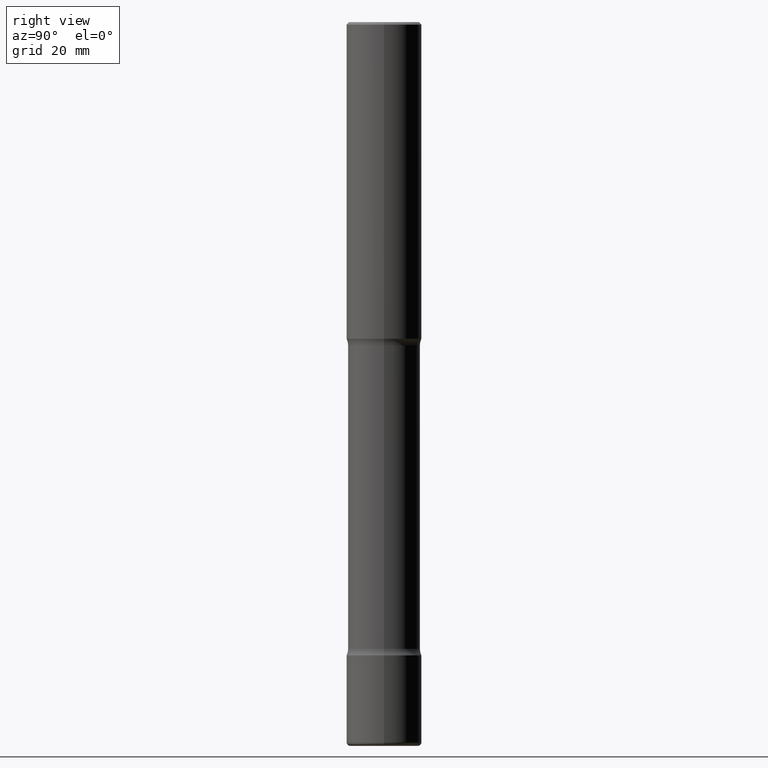
[diagram: clean part render]
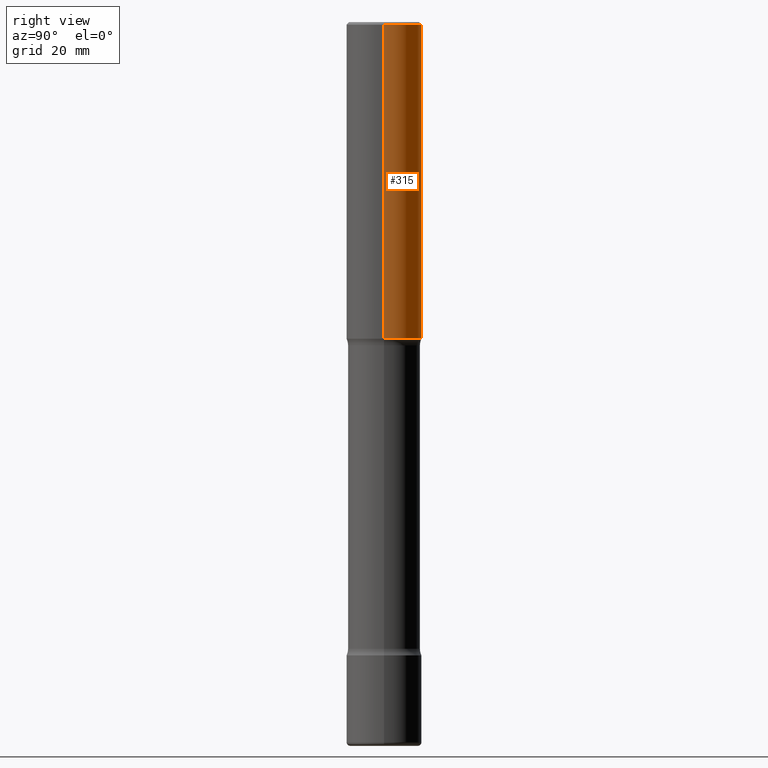
[diagram: same view with one face highlighted and labeled with its STEP entity id]
A machine part, right view. The second image highlights one B-rep face of the part: STEP entity #315.
In plain terms, the highlighted cylindrical surface (partial cylindrical patch) has radius 7.9375 mm, axis along (-0, 0, 1).
Its self-contained STEP definition (entity closure, byte-faithful):
#20 = AXIS2_PLACEMENT_3D ( 'NONE', #300, #128, #112 ) ;
#23 = DIRECTION ( 'NONE',  ( -2.445468806185136597E-29, 3.491481338843145583E-15, 1.000000000000000000 ) ) ;
#31 = CIRCLE ( 'NONE', #20, 0.3124999999999996669 ) ;
#58 = LINE ( 'NONE', #678, #117 ) ;
#94 = CARTESIAN_POINT ( 'NONE',  ( 0.000000000000000000, 0.000000000000000000, 0.000000000000000000 ) ) ;
#112 = DIRECTION ( 'NONE',  ( 1.000000000000000000, -6.982962677686266711E-15, 0.000000000000000000 ) ) ;
#117 = VECTOR ( 'NONE', #371, 39.37007874015748143 ) ;
#128 = DIRECTION ( 'NONE',  ( -2.445468806185136597E-29, 3.491481338843145583E-15, 1.000000000000000000 ) ) ;
#177 = DIRECTION ( 'NONE',  ( -2.445468806185136597E-29, 3.491481338843145583E-15, 1.000000000000000000 ) ) ;
#181 = CARTESIAN_POINT ( 'NONE',  ( 0.3124999999999998890, -2.182175836776957558E-15, 1.523805242436229235E-29 ) ) ;
#196 = CARTESIAN_POINT ( 'NONE',  ( -0.3125000000000000000, -2.397038021369746085E-15, -2.625000000000000444 ) ) ;
#275 = ORIENTED_EDGE ( 'NONE', *, *, #476, .F. ) ;
#300 = CARTESIAN_POINT ( 'NONE',  ( 4.890937612370289799E-31, -6.982962677686315028E-17, -0.02000000000000006981 ) ) ;
#303 = AXIS2_PLACEMENT_3D ( 'NONE', #440, #177, #424 ) ;
#315 = ADVANCED_FACE ( 'NONE', ( #452 ), #335, .T. ) ;
#318 = ORIENTED_EDGE ( 'NONE', *, *, #447, .F. ) ;
#326 = CARTESIAN_POINT ( 'NONE',  ( 0.3124999999999996669, -2.213735251080464545E-15, -0.02000000000000006981 ) ) ;
#328 = CIRCLE ( 'NONE', #303, 0.3125000000000000000 ) ;
#335 = CYLINDRICAL_SURFACE ( 'NONE', #460, 0.3124999999999998890 ) ;
#371 = DIRECTION ( 'NONE',  ( -2.445468806185136877E-29, 3.491481338843145188E-15, 1.000000000000000000 ) ) ;
#424 = DIRECTION ( 'NONE',  ( 1.000000000000000000, -6.982962677686269077E-15, 0.000000000000000000 ) ) ;
#430 = VERTEX_POINT ( 'NONE', #479 ) ;
#431 = EDGE_CURVE ( 'NONE', #638, #430, #58, .T. ) ;
#440 = CARTESIAN_POINT ( 'NONE',  ( 6.419355616235984688E-29, -9.165138514463258190E-15, -2.625000000000000444 ) ) ;
#447 = EDGE_CURVE ( 'NONE', #508, #666, #488, .T. ) ;
#452 = FACE_OUTER_BOUND ( 'NONE', #477, .T. ) ;
#455 = EDGE_CURVE ( 'NONE', #508, #638, #328, .T. ) ;
#460 = AXIS2_PLACEMENT_3D ( 'NONE', #94, #23, #583 ) ;
#476 = EDGE_CURVE ( 'NONE', #666, #430, #31, .T. ) ;
#477 = EDGE_LOOP ( 'NONE', ( #803, #776, #275, #318 ) ) ;
#479 = CARTESIAN_POINT ( 'NONE',  ( -0.3124999999999996669, 2.112346210000092682E-15, -0.02000000000000006981 ) ) ;
#488 = LINE ( 'NONE', #181, #616 ) ;
#508 = VERTEX_POINT ( 'NONE', #518 ) ;
#518 = CARTESIAN_POINT ( 'NONE',  ( 0.3125000000000000000, -1.134731435124021811E-14, -2.625000000000000444 ) ) ;
#583 = DIRECTION ( 'NONE',  ( 1.000000000000000000, -6.982962677686266711E-15, 4.876176775795935232E-29 ) ) ;
#616 = VECTOR ( 'NONE', #620, 39.37007874015748143 ) ;
#620 = DIRECTION ( 'NONE',  ( -2.445468806185136877E-29, 3.491481338843145188E-15, 1.000000000000000000 ) ) ;
#638 = VERTEX_POINT ( 'NONE', #196 ) ;
#666 = VERTEX_POINT ( 'NONE', #326 ) ;
#678 = CARTESIAN_POINT ( 'NONE',  ( -0.3124999999999998890, 2.220446049250312292E-15, -1.537167215704657391E-29 ) ) ;
#776 = ORIENTED_EDGE ( 'NONE', *, *, #431, .T. ) ;
#803 = ORIENTED_EDGE ( 'NONE', *, *, #455, .T. ) ;